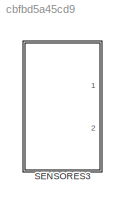
MODEL slx_cbfbd5a45cd9
KIND model
CONFIG AbsTol = auto
CONFIG EnableMultiTasking = off
CONFIG FixedStep = auto
CONFIG MaxStep = auto
CONFIG MinStep = auto
CONFIG RelTol = 1e-3
CONFIG SampleTimeConstraint = Unconstrained
CONFIG Solver = VariableStepAuto
CONFIG SolverName = VariableStepAuto
CONFIG StartTime = 0.0
CONFIG StopTime = 10.0
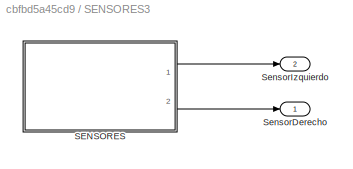
BLOCK [SubSystem] SENSORES3
  Ports = [0, 2]
  RequestExecContextInheritance = off
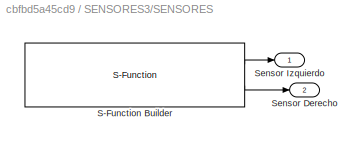
BLOCK [SubSystem] SENSORES3/SENSORES
  Ports = [0, 2]
  RequestExecContextInheritance = off
BLOCK [S-Function] SENSORES3/SENSORES/S-Function Builder
  CopyFcn = set_param(gcbh,'LinkStatus','none')
  EnableBusSupport = off
  FunctionName = Sensores_VL53L0X_I2C
  InitFcn = try, set_param(gcb,'FunctionName','Sensores_VL53L0X_I2C'), end
  OpenFcn = sfunctionwizard(gcbh)
  Ports = [0, 2]
  PreSaveFcn = try, set_param(gcb,'FunctionName','Sensores_VL53L0X_I2C'), end
  SFcnIsStateOwnerBlock = off
  SFunctionDeploymentMode = off
  SFunctionModules = Sensores_VL53L0X_I2C_wrapper
BLOCK [Outport] SENSORES3/SENSORES/Sensor Derecho
  IconDisplay = Port number
  Port = 2
BLOCK [Outport] SENSORES3/SENSORES/Sensor Izquierdo
  IconDisplay = Port number
BLOCK [Outport] SENSORES3/SensorDerecho
  IconDisplay = Port number
BLOCK [Outport] SENSORES3/SensorIzquierdo
  IconDisplay = Port number
  Port = 2
LINE SENSORES3/SENSORES/S-Function Builder:1 -> SENSORES3/SENSORES/Sensor Izquierdo:1
LINE SENSORES3/SENSORES/S-Function Builder:2 -> SENSORES3/SENSORES/Sensor Derecho:1
LINE SENSORES3/SENSORES:1 -> SENSORES3/SensorIzquierdo:1
LINE SENSORES3/SENSORES:2 -> SENSORES3/SensorDerecho:1
